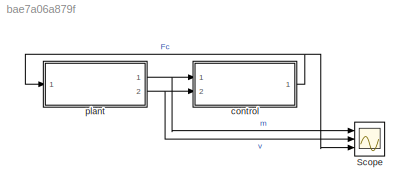
MODEL slx_bae7a06a879f
KIND model
CONFIG AbsTol = auto
CONFIG EnableMultiTasking = off
CONFIG FixedStep = auto
CONFIG MaxStep = auto
CONFIG MinStep = auto
CONFIG RelTol = 1e-3
CONFIG SampleTimeConstraint = Unconstrained
CONFIG Solver = VariableStepAuto
CONFIG SolverName = VariableStepAuto
CONFIG StartTime = 0.0
CONFIG StopTime = 33
BLOCK [Scope] Scope
  Floating = off
  NumInputPorts = 3
  Ports = [3]
  ScopeSpecificationString = Simulink.scopes.TimeScopeBlockCfg('CurrentConfiguration', extmgr.ConfigurationSet(extmgr.Configuration('Core','General UI',true),extmgr.Configuration('Core','Source UI',true),extmgr.Configuration('Sources','WiredSimulink',true),extmgr.Configuration('Visuals','Time Domain',true),extmgr.Configuration('Tools','Plot Navigation',true),extmgr.Configuration('Tools','Measurements',true)),'Version','2020a'...<+1ch>
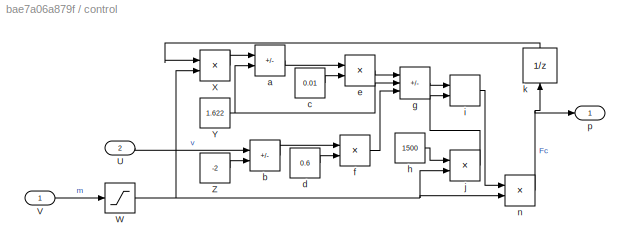
BLOCK [SubSystem] control
  Ports = [2, 1]
  RequestExecContextInheritance = off
BLOCK [Inport] control/U
  Port = 2
BLOCK [Inport] control/V
BLOCK [Saturate] control/W
  LowerLimit = 1500
  UpperLimit = 5000
BLOCK [Product] control/X
  Inputs = */
  Ports = [2, 1]
  SampleTime = 0.128
BLOCK [Constant] control/Y
  Value = 1.622
BLOCK [Constant] control/Z
  Value = -2
BLOCK [Sum] control/a
  IconShape = rectangular
  Inputs = +-
  Ports = [2, 1]
  SampleTime = 0.128
BLOCK [Sum] control/b
  IconShape = rectangular
  Inputs = +-
  Ports = [2, 1]
  SampleTime = 0.128
BLOCK [Constant] control/c
  Value = 0.01
BLOCK [Constant] control/d
  Value = 0.6
BLOCK [Product] control/e
  Inputs = **
  Ports = [2, 1]
  SampleTime = 0.128
BLOCK [Product] control/f
  Inputs = **
  Ports = [2, 1]
  SampleTime = 0.128
BLOCK [Sum] control/g
  IconShape = rectangular
  Inputs = -+-
  Ports = [3, 1]
  SampleTime = 0.128
BLOCK [Constant] control/h
  Value = 1500
BLOCK [MinMax] control/i
  Function = max
  Inputs = 2
  Ports = [2, 1]
  SampleTime = 0.128
BLOCK [Product] control/j
  Inputs = */
  Ports = [2, 1]
  SampleTime = 0.128
BLOCK [UnitDelay] control/k
  HasFrameUpgradeWarning = on
  InitialCondition = 2027.5
  SampleTime = 0.128
BLOCK [Product] control/n
  Inputs = **
  Ports = [2, 1]
  SampleTime = 0.128
BLOCK [Outport] control/p
  VectorParamsAs1DForOutWhenUnconnected = off
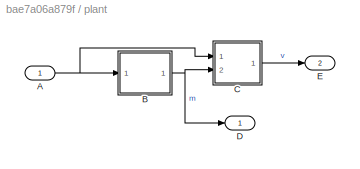
BLOCK [SubSystem] plant
  Ports = [1, 2]
  RequestExecContextInheritance = off
BLOCK [Inport] plant/A
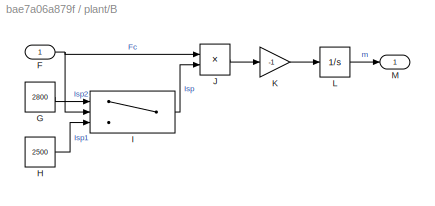
BLOCK [SubSystem] plant/B
  Ports = [1, 1]
  RequestExecContextInheritance = off
BLOCK [Inport] plant/B/F
BLOCK [Constant] plant/B/G
  Value = 2800
BLOCK [Constant] plant/B/H
  Value = 2500
BLOCK [Switch] plant/B/I
  Criteria = u2 > Threshold
  InputSameDT = off
  SaturateOnIntegerOverflow = off
  Threshold = 3000
BLOCK [Product] plant/B/J
  Inputs = */
  Ports = [2, 1]
BLOCK [Gain] plant/B/K
  Gain = -1
BLOCK [Integrator] plant/B/L
  InitialCondition = 1250
  Ports = [1, 1]
BLOCK [Outport] plant/B/M
  VectorParamsAs1DForOutWhenUnconnected = off
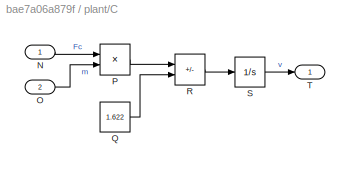
BLOCK [SubSystem] plant/C
  Ports = [2, 1]
  RequestExecContextInheritance = off
BLOCK [Inport] plant/C/N
BLOCK [Inport] plant/C/O
  Port = 2
BLOCK [Product] plant/C/P
  Inputs = */
  Ports = [2, 1]
BLOCK [Constant] plant/C/Q
  Value = 1.622
BLOCK [Sum] plant/C/R
  IconShape = rectangular
  Inputs = +-
  Ports = [2, 1]
BLOCK [Integrator] plant/C/S
  InitialCondition = -2
  Ports = [1, 1]
BLOCK [Outport] plant/C/T
  VectorParamsAs1DForOutWhenUnconnected = off
BLOCK [Outport] plant/D
  VectorParamsAs1DForOutWhenUnconnected = off
BLOCK [Outport] plant/E
  Port = 2
  VectorParamsAs1DForOutWhenUnconnected = off
LINE control/U:1 -> control/b:1
LINE control/V:1 -> control/W:1
NET control/W:1 -> control/X:2, control/j:2, control/n:2
LINE control/X:1 -> control/a:1
NET control/Y:1 -> control/a:2, control/g:2
LINE control/Z:1 -> control/b:2
LINE control/a:1 -> control/e:1
LINE control/b:1 -> control/f:1
LINE control/c:1 -> control/e:2
LINE control/d:1 -> control/f:2
LINE control/e:1 -> control/g:1
LINE control/f:1 -> control/g:3
LINE control/g:1 -> control/i:1
LINE control/h:1 -> control/j:1
LINE control/i:1 -> control/n:1
LINE control/j:1 -> control/i:2
LINE control/k:1 -> control/X:1
NET control/n:1 -> control/k:1, control/p:1
NET control:1 -> Scope:3, plant:1
NET plant/A:1 -> plant/B:1, plant/C:1
NET plant/B/F:1 -> plant/B/I:2, plant/B/J:1
LINE plant/B/G:1 -> plant/B/I:1
LINE plant/B/H:1 -> plant/B/I:3
LINE plant/B/I:1 -> plant/B/J:2
LINE plant/B/J:1 -> plant/B/K:1
LINE plant/B/K:1 -> plant/B/L:1
LINE plant/B/L:1 -> plant/B/M:1
NET plant/B:1 -> plant/C:2, plant/D:1
LINE plant/C/N:1 -> plant/C/P:1
LINE plant/C/O:1 -> plant/C/P:2
LINE plant/C/P:1 -> plant/C/R:1
LINE plant/C/Q:1 -> plant/C/R:2
LINE plant/C/R:1 -> plant/C/S:1
LINE plant/C/S:1 -> plant/C/T:1
LINE plant/C:1 -> plant/E:1
NET plant:1 -> Scope:1, control:1
NET plant:2 -> Scope:2, control:2
note: NET lines group one-source signal fan-out (src -> all destinations, sorted); 1:1 wires keep LINE
